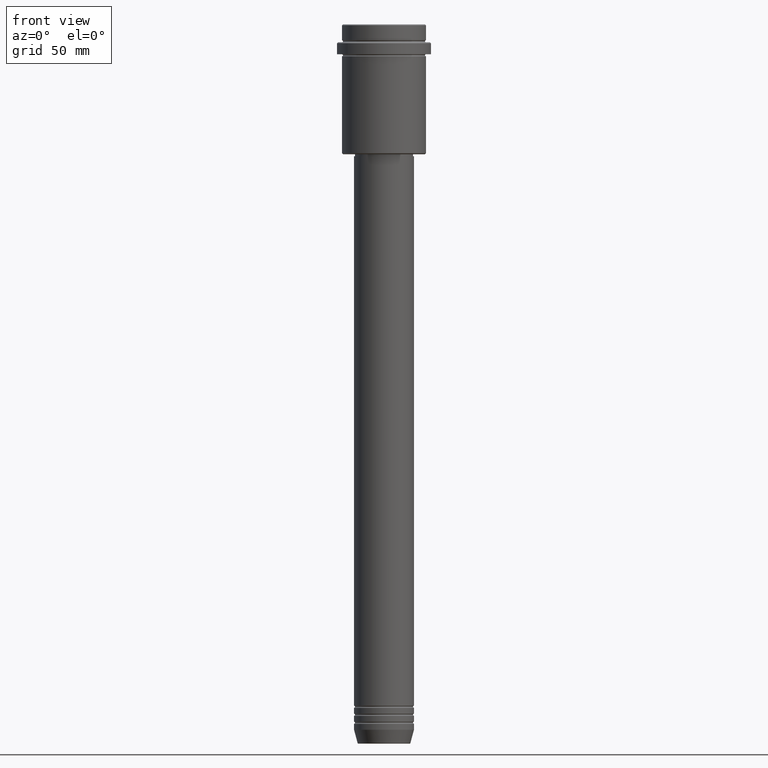
[diagram: clean part render]
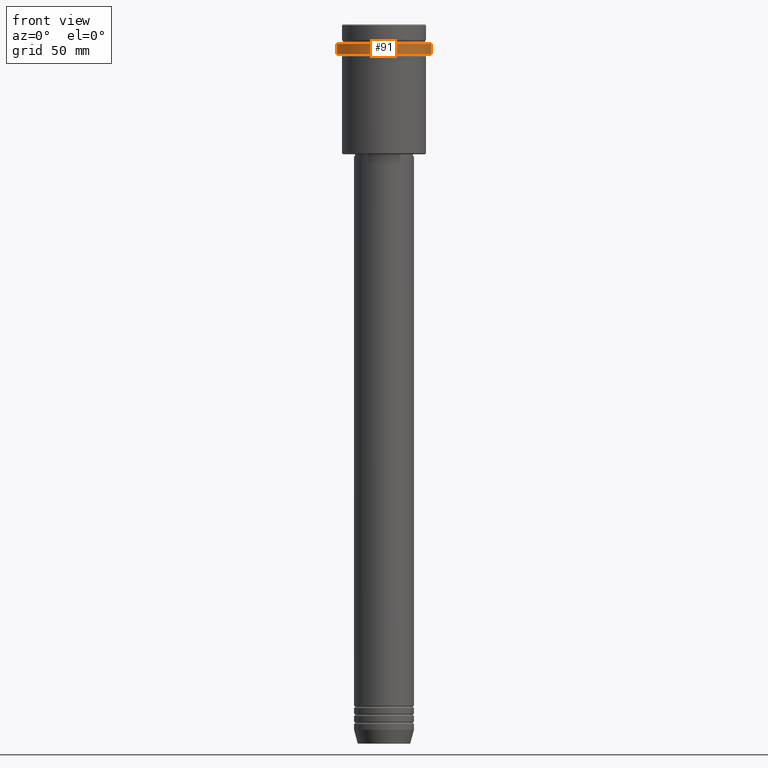
[diagram: same view with one face highlighted and labeled with its STEP entity id]
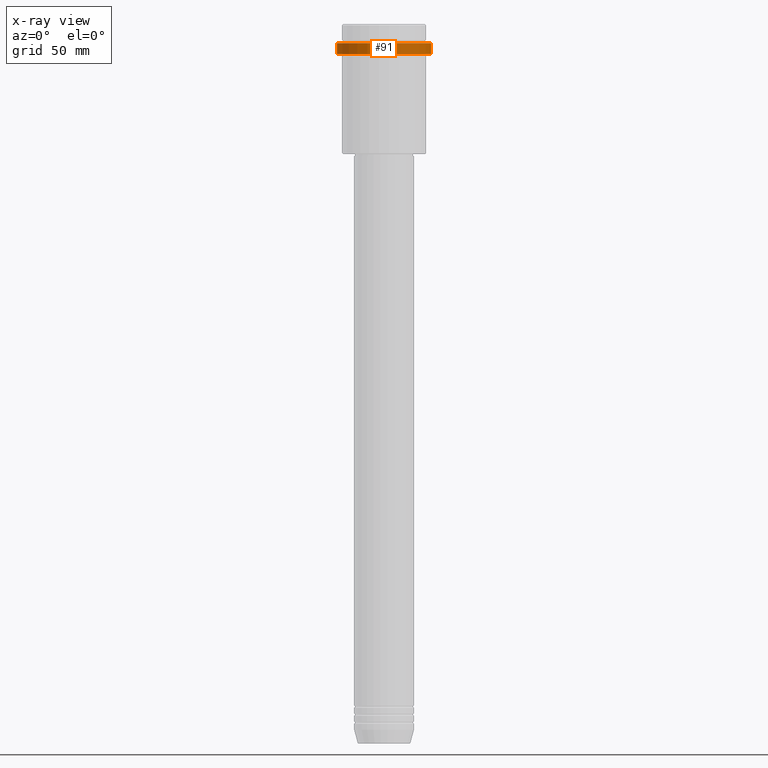
[diagram: x-ray of the same camera — body ghosted, the highlighted face saturated]
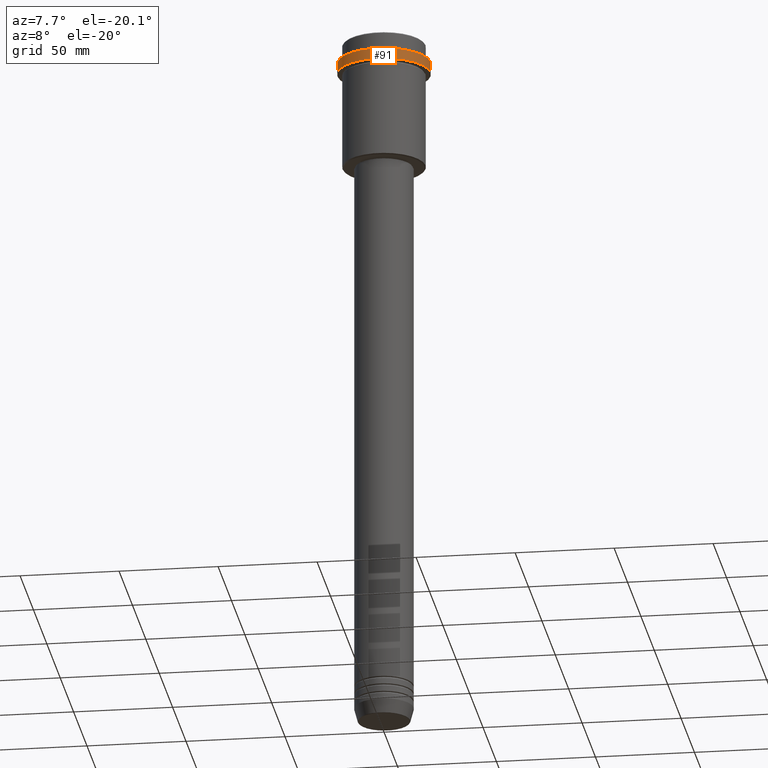
[diagram: same view with one face highlighted and labeled with its STEP entity id]
A machine part, front view. The second image highlights one B-rep face of the part: STEP entity #91.
The next image is the same camera in x-ray: the body ghosted, the highlighted face saturated — about 0% of this face is hidden behind the body in this view.
A second angle (auxiliary view) of the same face is appended — the face is thin or edge-on in the first view.
In plain terms, the highlighted cylindrical surface (partial cylindrical patch) has radius 23.5 mm, axis along (-0, -0, 1).
Its self-contained STEP definition (entity closure, byte-faithful):
#9 = EDGE_CURVE ( 'NONE', #627, #109, #857, .T. ) ;
#55 = CIRCLE ( 'NONE', #455, 23.50000000000000000 ) ;
#60 = DIRECTION ( 'NONE',  ( -0.000000000000000000, -0.000000000000000000, 1.000000000000000000 ) ) ;
#91 = ADVANCED_FACE ( 'NONE', ( #1077 ), #655, .T. ) ;
#102 = CARTESIAN_POINT ( 'NONE',  ( 0.000000000000000000, 0.000000000000000000, 0.000000000000000000 ) ) ;
#109 = VERTEX_POINT ( 'NONE', #778 ) ;
#120 = DIRECTION ( 'NONE',  ( -0.000000000000000000, -0.000000000000000000, 1.000000000000000000 ) ) ;
#136 = CARTESIAN_POINT ( 'NONE',  ( 23.50000000000000000, 0.000000000000000000, 0.000000000000000000 ) ) ;
#161 = ORIENTED_EDGE ( 'NONE', *, *, #1160, .T. ) ;
#181 = AXIS2_PLACEMENT_3D ( 'NONE', #102, #763, #1197 ) ;
#354 = CARTESIAN_POINT ( 'NONE',  ( -23.50000000000000711, 2.877919977996281109E-15, -15.00000000000000000 ) ) ;
#363 = CARTESIAN_POINT ( 'NONE',  ( 23.50000000000000000, 0.000000000000000000, -9.500000000000000000 ) ) ;
#402 = ORIENTED_EDGE ( 'NONE', *, *, #9, .T. ) ;
#406 = LINE ( 'NONE', #1404, #1378 ) ;
#416 = DIRECTION ( 'NONE',  ( -0.000000000000000000, -0.000000000000000000, 1.000000000000000000 ) ) ;
#455 = AXIS2_PLACEMENT_3D ( 'NONE', #1358, #457, #1137 ) ;
#457 = DIRECTION ( 'NONE',  ( 0.000000000000000000, 0.000000000000000000, -1.000000000000000000 ) ) ;
#514 = CARTESIAN_POINT ( 'NONE',  ( 0.000000000000000000, 0.000000000000000000, -15.00000000000000000 ) ) ;
#573 = EDGE_LOOP ( 'NONE', ( #1340, #402, #161, #1384 ) ) ;
#583 = VERTEX_POINT ( 'NONE', #363 ) ;
#627 = VERTEX_POINT ( 'NONE', #354 ) ;
#655 = CYLINDRICAL_SURFACE ( 'NONE', #181, 23.50000000000000000 ) ;
#763 = DIRECTION ( 'NONE',  ( -0.000000000000000000, -0.000000000000000000, 1.000000000000000000 ) ) ;
#778 = CARTESIAN_POINT ( 'NONE',  ( 23.50000000000000355, 0.000000000000000000, -15.00000000000000000 ) ) ;
#857 = CIRCLE ( 'NONE', #1046, 23.50000000000000355 ) ;
#875 = CARTESIAN_POINT ( 'NONE',  ( -23.50000000000000000, 2.877919977996280320E-15, -9.500000000000000000 ) ) ;
#936 = VERTEX_POINT ( 'NONE', #875 ) ;
#1046 = AXIS2_PLACEMENT_3D ( 'NONE', #514, #416, #1304 ) ;
#1077 = FACE_OUTER_BOUND ( 'NONE', #573, .T. ) ;
#1108 = LINE ( 'NONE', #136, #1330 ) ;
#1137 = DIRECTION ( 'NONE',  ( 1.000000000000000000, 0.000000000000000000, 0.000000000000000000 ) ) ;
#1151 = EDGE_CURVE ( 'NONE', #583, #936, #55, .T. ) ;
#1160 = EDGE_CURVE ( 'NONE', #109, #583, #1108, .T. ) ;
#1197 = DIRECTION ( 'NONE',  ( 1.000000000000000000, 0.000000000000000000, 0.000000000000000000 ) ) ;
#1304 = DIRECTION ( 'NONE',  ( 1.000000000000000000, 0.000000000000000000, 0.000000000000000000 ) ) ;
#1330 = VECTOR ( 'NONE', #60, 1000.000000000000000 ) ;
#1340 = ORIENTED_EDGE ( 'NONE', *, *, #1401, .F. ) ;
#1358 = CARTESIAN_POINT ( 'NONE',  ( 0.000000000000000000, 0.000000000000000000, -9.500000000000000000 ) ) ;
#1378 = VECTOR ( 'NONE', #120, 1000.000000000000000 ) ;
#1384 = ORIENTED_EDGE ( 'NONE', *, *, #1151, .T. ) ;
#1401 = EDGE_CURVE ( 'NONE', #627, #936, #406, .T. ) ;
#1404 = CARTESIAN_POINT ( 'NONE',  ( -23.50000000000000000, 2.877919977996280320E-15, 0.000000000000000000 ) ) ;